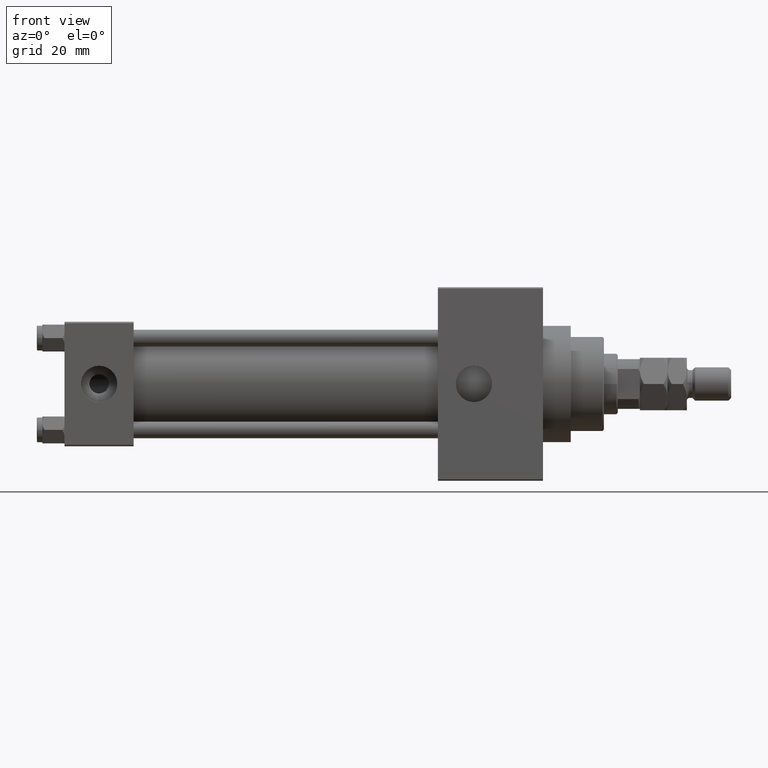
[diagram: clean part render]
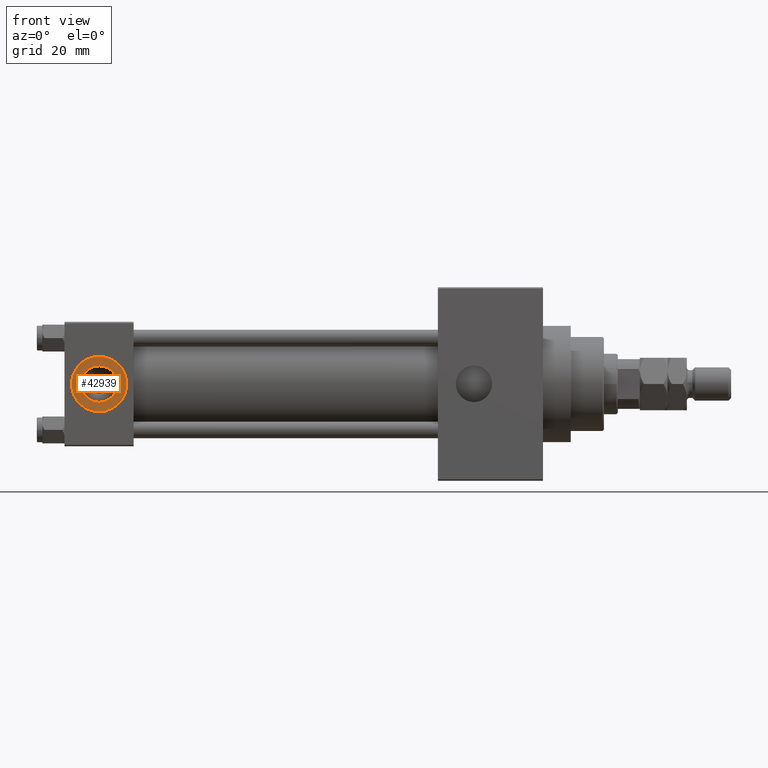
[diagram: same view with one face highlighted and labeled with its STEP entity id]
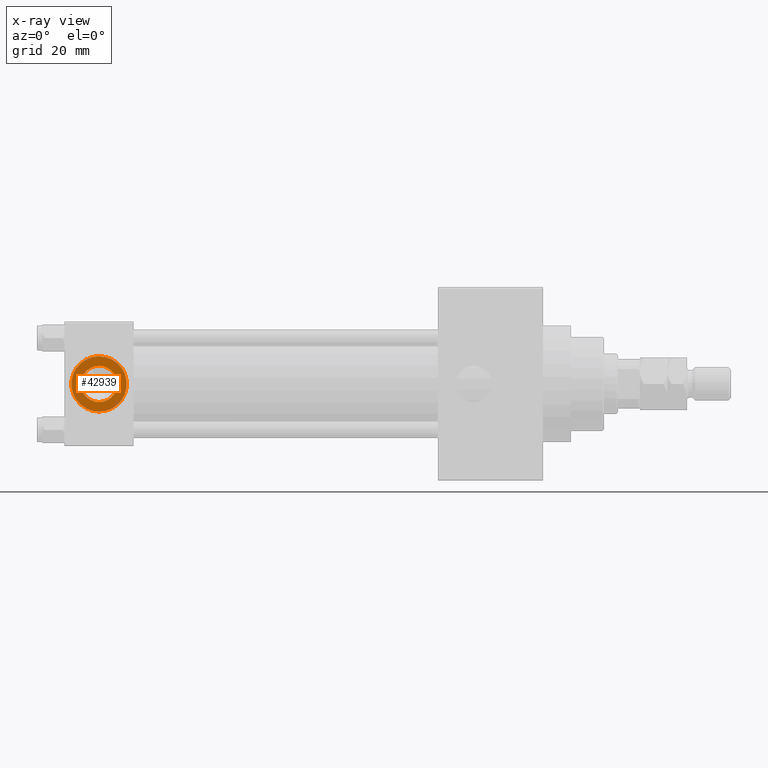
[diagram: x-ray of the same camera — body ghosted, the highlighted face saturated]
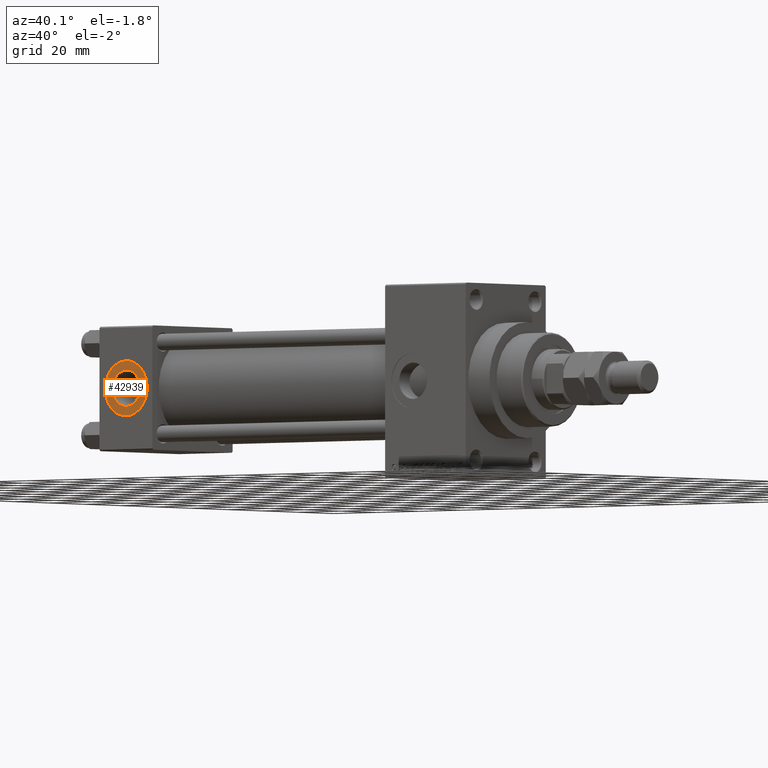
[diagram: same view with one face highlighted and labeled with its STEP entity id]
A machine part, front view. The second image highlights one B-rep face of the part: STEP entity #42939.
The next image is the same camera in x-ray: the body ghosted, the highlighted face saturated — about 0% of this face is hidden behind the body in this view.
A second angle (auxiliary view) of the same face is appended — the face is thin or edge-on in the first view.
In plain terms, the highlighted planar face has unit normal (0, -1, -0).
Its self-contained STEP definition (entity closure, byte-faithful):
#627 = CARTESIAN_POINT ( 'NONE',  ( 12.50000000000000000, -22.30000000000000071, 1.734723475976808635E-17 ) ) ;
#2997 = CIRCLE ( 'NONE', #30506, 9.999999999999996447 ) ;
#4271 = VERTEX_POINT ( 'NONE', #15263 ) ;
#4480 = DIRECTION ( 'NONE',  ( 0.000000000000000000, -1.000000000000000000, -8.673617379884036705E-17 ) ) ;
#4499 = AXIS2_PLACEMENT_3D ( 'NONE', #17767, #21938, #18245 ) ;
#7427 = EDGE_CURVE ( 'NONE', #10998, #4271, #43726, .T. ) ;
#9564 = DIRECTION ( 'NONE',  ( 0.000000000000000000, -1.000000000000000000, -8.673617379884036705E-17 ) ) ;
#9669 = FACE_BOUND ( 'NONE', #36277, .T. ) ;
#10205 = ORIENTED_EDGE ( 'NONE', *, *, #7427, .T. ) ;
#10998 = VERTEX_POINT ( 'NONE', #23126 ) ;
#15114 = ORIENTED_EDGE ( 'NONE', *, *, #41529, .F. ) ;
#15263 = CARTESIAN_POINT ( 'NONE',  ( 12.50000000000000000, -22.30000000000000071, -9.999999999999996447 ) ) ;
#16252 = EDGE_CURVE ( 'NONE', #28044, #34866, #30515, .T. ) ;
#17193 = CARTESIAN_POINT ( 'NONE',  ( 12.50000000000000000, -22.30000000000000071, 1.734723475976807403E-17 ) ) ;
#17767 = CARTESIAN_POINT ( 'NONE',  ( 12.50000000000000000, -22.30000000000000071, 1.734723475976807403E-17 ) ) ;
#18245 = DIRECTION ( 'NONE',  ( 0.000000000000000000, 8.673617379884036705E-17, -1.000000000000000000 ) ) ;
#18752 = CARTESIAN_POINT ( 'NONE',  ( 12.50000000000000000, -22.30000000000000071, 1.734723475976807403E-17 ) ) ;
#19599 = ORIENTED_EDGE ( 'NONE', *, *, #46562, .T. ) ;
#20115 = CARTESIAN_POINT ( 'NONE',  ( 12.50000000000000000, -22.30000000000000071, 6.579999999999998295 ) ) ;
#21459 = FACE_OUTER_BOUND ( 'NONE', #36065, .T. ) ;
#21712 = DIRECTION ( 'NONE',  ( 0.000000000000000000, 0.000000000000000000, -1.000000000000000000 ) ) ;
#21938 = DIRECTION ( 'NONE',  ( 0.000000000000000000, -1.000000000000000000, -8.673617379884036705E-17 ) ) ;
#22470 = AXIS2_PLACEMENT_3D ( 'NONE', #17193, #9564, #27771 ) ;
#22538 = DIRECTION ( 'NONE',  ( 0.000000000000000000, -1.000000000000000000, -8.673617379884036705E-17 ) ) ;
#23126 = CARTESIAN_POINT ( 'NONE',  ( 12.50000000000000178, -22.30000000000000071, 9.999999999999996447 ) ) ;
#25401 = DIRECTION ( 'NONE',  ( 0.000000000000000000, -1.000000000000000000, -8.673617379884036705E-17 ) ) ;
#26125 = CARTESIAN_POINT ( 'NONE',  ( 12.50000000000000000, -22.30000000000000071, 1.734723475976808635E-17 ) ) ;
#26617 = DIRECTION ( 'NONE',  ( 0.000000000000000000, 0.000000000000000000, -1.000000000000000000 ) ) ;
#27771 = DIRECTION ( 'NONE',  ( 0.000000000000000000, 0.000000000000000000, -1.000000000000000000 ) ) ;
#28044 = VERTEX_POINT ( 'NONE', #20115 ) ;
#28873 = CARTESIAN_POINT ( 'NONE',  ( 12.50000000000000000, -22.30000000000000071, -6.579999999999998295 ) ) ;
#30506 = AXIS2_PLACEMENT_3D ( 'NONE', #18752, #25401, #21712 ) ;
#30515 = CIRCLE ( 'NONE', #34433, 6.579999999999998295 ) ;
#31922 = CIRCLE ( 'NONE', #45312, 6.579999999999998295 ) ;
#34433 = AXIS2_PLACEMENT_3D ( 'NONE', #26125, #4480, #26617 ) ;
#34866 = VERTEX_POINT ( 'NONE', #28873 ) ;
#36065 = EDGE_LOOP ( 'NONE', ( #19599, #10205 ) ) ;
#36277 = EDGE_LOOP ( 'NONE', ( #15114, #38445 ) ) ;
#36473 = PLANE ( 'NONE',  #4499 ) ;
#37559 = DIRECTION ( 'NONE',  ( 0.000000000000000000, 0.000000000000000000, -1.000000000000000000 ) ) ;
#38445 = ORIENTED_EDGE ( 'NONE', *, *, #16252, .F. ) ;
#41529 = EDGE_CURVE ( 'NONE', #34866, #28044, #31922, .T. ) ;
#42939 = ADVANCED_FACE ( 'NONE', ( #9669, #21459 ), #36473, .T. ) ;
#43726 = CIRCLE ( 'NONE', #22470, 9.999999999999996447 ) ;
#45312 = AXIS2_PLACEMENT_3D ( 'NONE', #627, #22538, #37559 ) ;
#46562 = EDGE_CURVE ( 'NONE', #4271, #10998, #2997, .T. ) ;